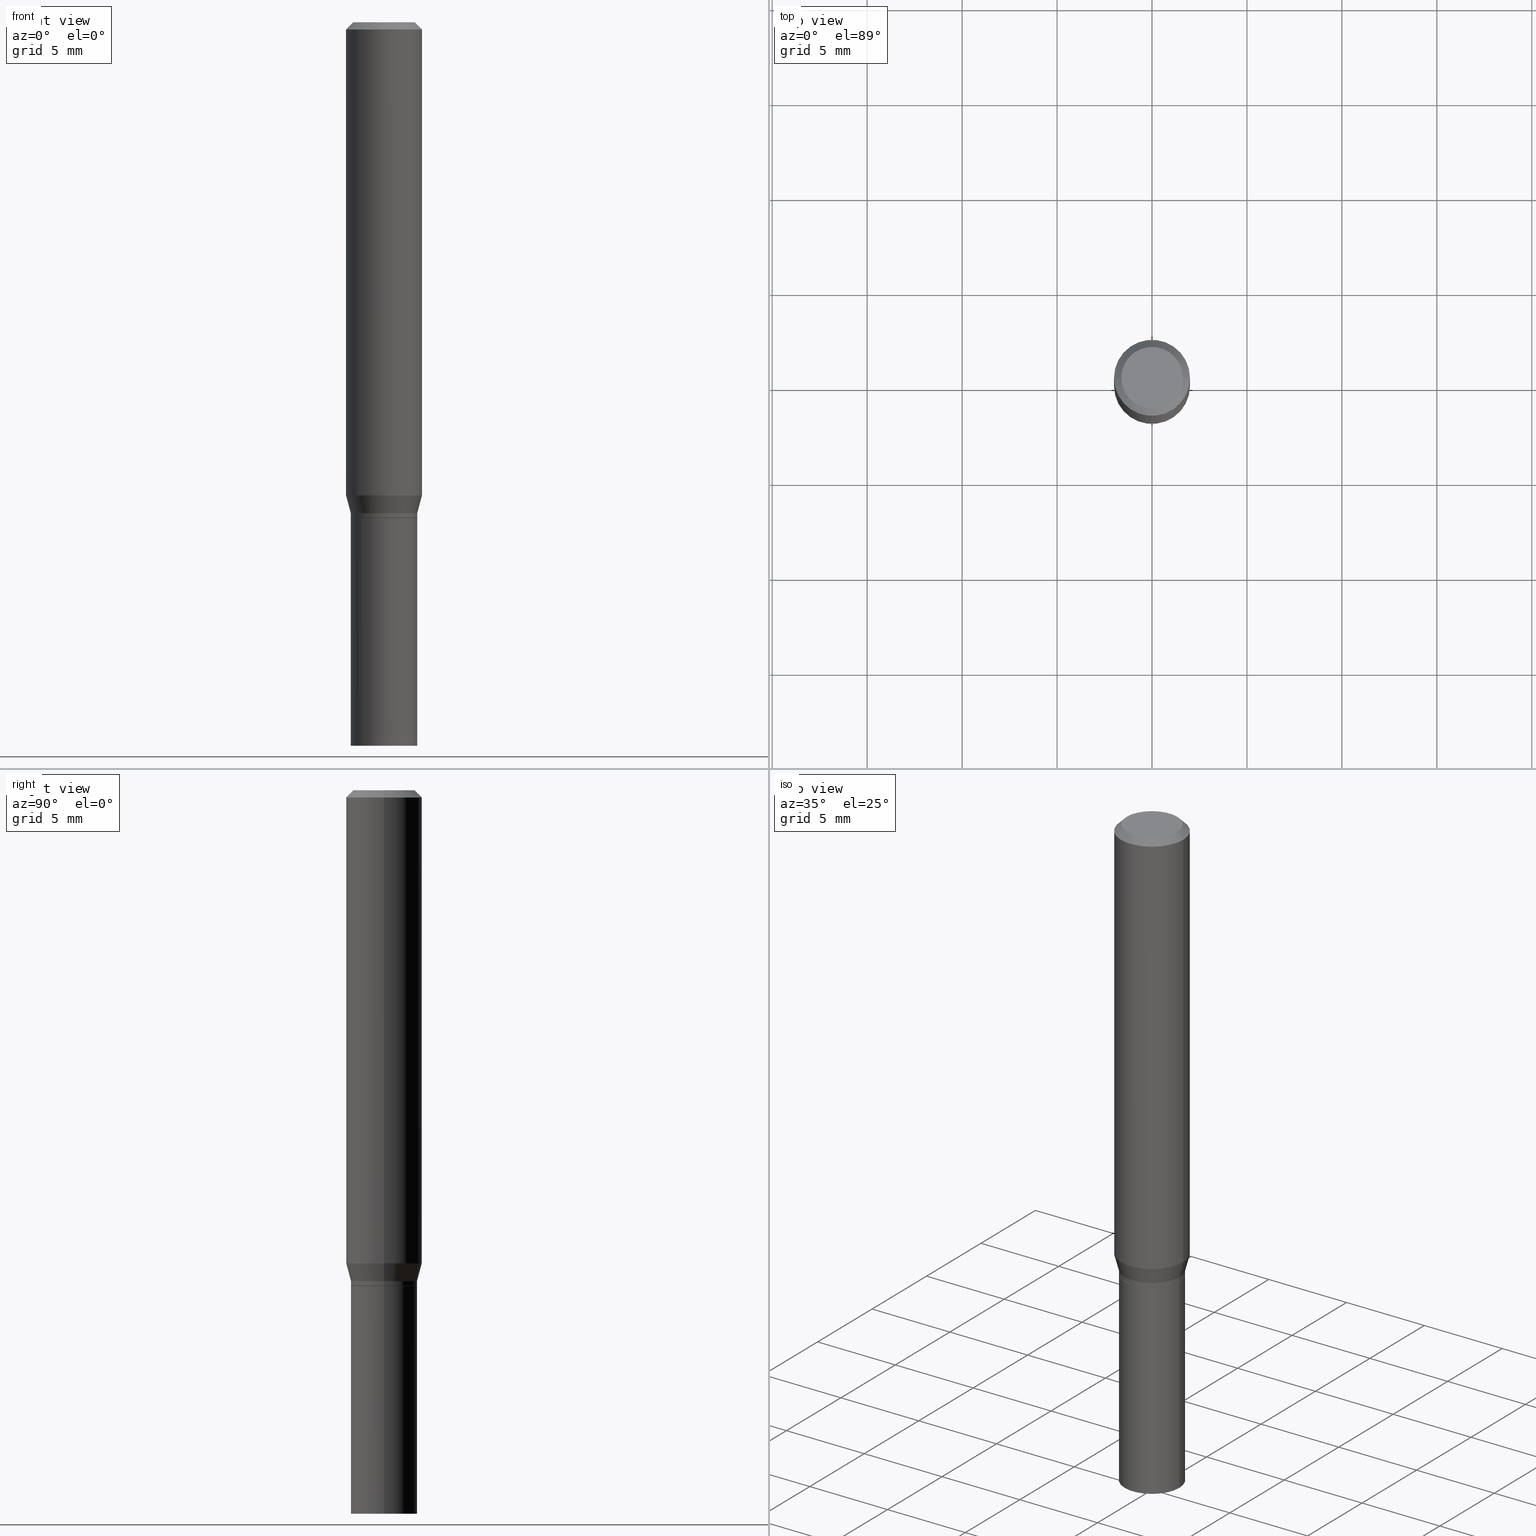
[diagram: canonical four-view strip — front | top / right | iso, engineering-drawing reading convention]
A machine part, canonical four-view strip (front | top / right | iso — engineering-drawing reading convention). The complete STEP part file that produces these views, byte-faithful:
ISO-10303-21;
HEADER;
FILE_DESCRIPTION (( 'STEP AP203' ),
    '1' );
FILE_NAME ('40125.STEP',
    '2024-03-12T19:09:19',
    ( '' ),
    ( '' ),
    'SwSTEP 2.0',
    'SolidWorks 2023',
    '' );
FILE_SCHEMA (( 'CONFIG_CONTROL_DESIGN' ));
ENDSEC;

DATA;
#1 = CONICAL_SURFACE ( 'NONE', #209, 0.07875000000000000056, 0.7853981633974492782 ) ;
#2 = CARTESIAN_POINT ( 'NONE',  ( 0.000000000000000000, 0.000000000000000000, 0.000000000000000000 ) ) ;
#3 = EDGE_LOOP ( 'NONE', ( #211, #59 ) ) ;
#4 = DIRECTION ( 'NONE',  ( 1.000000000000000000, -6.982962677686265922E-15, 0.000000000000000000 ) ) ;
#5 = UNCERTAINTY_MEASURE_WITH_UNIT (LENGTH_MEASURE( 1.000000000000000082E-05 ), #458, 'distance_accuracy_value', 'NONE');
#6 = DIRECTION ( 'NONE',  ( 1.000000000000000000, -6.982962677686265922E-15, 4.876524793569656819E-29 ) ) ;
#7 = CARTESIAN_POINT ( 'NONE',  ( 2.512963745235846851E-29, -3.587846223795217707E-15, -1.027600000000000291 ) ) ;
#8 = VECTOR ( 'NONE', #230, 39.37007874015748143 ) ;
#9 = DIRECTION ( 'NONE',  ( 1.000000000000000000, -6.982962677686265922E-15, 0.000000000000000000 ) ) ;
#10 = FACE_OUTER_BOUND ( 'NONE', #244, .T. ) ;
#11 = ORIENTED_EDGE ( 'NONE', *, *, #125, .T. ) ;
#12 = DIRECTION ( 'NONE',  ( 1.000000000000000000, -6.982962677686265922E-15, 4.876524793569656819E-29 ) ) ;
#13 = EDGE_LOOP ( 'NONE', ( #429, #138 ) ) ;
#14 = DIRECTION ( 'NONE',  ( -2.445468806185136597E-29, 3.491481338843145583E-15, 1.000000000000000000 ) ) ;
#15 = ADVANCED_FACE ( 'NONE', ( #103 ), #69, .F. ) ;
#16 = CIRCLE ( 'NONE', #274, 0.06890000000000007230 ) ;
#17 = APPLICATION_PROTOCOL_DEFINITION ( 'international standard', 'config_control_design', 1994, #146 ) ;
#18 = CARTESIAN_POINT ( 'NONE',  ( 0.06890000000000012781, -4.811261284925847246E-16, 3.359685798523406275E-30 ) ) ;
#19 = EDGE_CURVE ( 'NONE', #247, #65, #16, .T. ) ;
#20 = DIRECTION ( 'NONE',  ( -2.445468806185136877E-29, 3.491481338843145188E-15, 1.000000000000000000 ) ) ;
#21 = APPROVAL_PERSON_ORGANIZATION ( #242, #238, #131 ) ;
#22 = AXIS2_PLACEMENT_3D ( 'NONE', #331, #221, #447 ) ;
#23 = CARTESIAN_POINT ( 'NONE',  ( -0.07875000000000001443, 5.595524044110789989E-16, -3.873661383575739193E-30 ) ) ;
#24 = CARTESIAN_POINT ( 'NONE',  ( 2.512963745235846570E-29, -3.587846223795216918E-15, -1.027600000000000069 ) ) ;
#25 = CC_DESIGN_SECURITY_CLASSIFICATION ( #427, ( #200 ) ) ;
#26 = ORIENTED_EDGE ( 'NONE', *, *, #223, .F. ) ;
#27 = CARTESIAN_POINT ( 'NONE',  ( 0.06840000000000000246, -4.065480870948958439E-15, -1.027600000000000291 ) ) ;
#28 = EDGE_CURVE ( 'NONE', #227, #253, #137, .T. ) ;
#29 = APPROVAL_PERSON_ORGANIZATION ( #358, #56, #314 ) ;
#30 = PERSON_AND_ORGANIZATION_ROLE ( 'classification_officer' ) ;
#31 = DATE_AND_TIME ( #174, #153 ) ;
#32 = PRODUCT_DEFINITION ( 'UNKNOWN', '', #200, #285 ) ;
#33 = ORIENTED_EDGE ( 'NONE', *, *, #328, .T. ) ;
#34 = VECTOR ( 'NONE', #263, 39.37007874015748143 ) ;
#35 = VERTEX_POINT ( 'NONE', #403 ) ;
#36 = CARTESIAN_POINT ( 'NONE',  ( 3.576687321579069994E-29, -5.368277968210015545E-15, -1.500000000000000222 ) ) ;
#37 = AXIS2_PLACEMENT_3D ( 'NONE', #208, #337, #367 ) ;
#38 = CARTESIAN_POINT ( 'NONE',  ( 8.203589851528197750E-46, -1.171255213139091292E-31, -3.354608257843848654E-17 ) ) ;
#39 = DIRECTION ( 'NONE',  ( 0.7071067811865482389, -7.319954787623257623E-15, -0.7071067811865467956 ) ) ;
#40 = DIRECTION ( 'NONE',  ( 1.000000000000000000, -6.982962677686265922E-15, 4.876176775795935793E-29 ) ) ;
#41 = DIRECTION ( 'NONE',  ( 1.000000000000000000, -6.982962677686265922E-15, 4.876176775795935793E-29 ) ) ;
#42 = CARTESIAN_POINT ( 'NONE',  ( -0.06840000000000000246, -3.101834992535309064E-15, -1.027600000000000291 ) ) ;
#43 = CONICAL_SURFACE ( 'NONE', #386, 0.06890000000000007230, 0.2617993877991506846 ) ;
#44 = AXIS2_PLACEMENT_3D ( 'NONE', #277, #204, #288 ) ;
#45 = CARTESIAN_POINT ( 'NONE',  ( 3.668203209277705088E-31, -5.237222008264718399E-17, -0.01499999999999999944 ) ) ;
#46 = ORIENTED_EDGE ( 'NONE', *, *, #413, .T. ) ;
#47 = EDGE_CURVE ( 'NONE', #321, #249, #325, .T. ) ;
#48 = DIRECTION ( 'NONE',  ( -2.438088387897960049E-29, 3.491481338843145188E-15, 1.000000000000000000 ) ) ;
#49 = LINE ( 'NONE', #372, #34 ) ;
#50 = AXIS2_PLACEMENT_3D ( 'NONE', #385, #84, #167 ) ;
#51 = DIRECTION ( 'NONE',  ( 1.000000000000000000, -6.982962677686265922E-15, 0.000000000000000000 ) ) ;
#52 = EDGE_CURVE ( 'NONE', #321, #301, #329, .T. ) ;
#53 = DIRECTION ( 'NONE',  ( 0.7071067811865656694, -2.468850131082446387E-15, 0.7071067811865294761 ) ) ;
#54 = DIRECTION ( 'NONE',  ( 1.000000000000000000, -6.982962677686267499E-15, 4.876176775795936353E-29 ) ) ;
#55 = DIRECTION ( 'NONE',  ( -2.445468806185136597E-29, 3.491481338843145583E-15, 1.000000000000000000 ) ) ;
#56 = APPROVAL ( #90, 'UNSPECIFIED' ) ;
#57 = CARTESIAN_POINT ( 'NONE',  ( 2.488509057173995025E-29, -3.552931410406785269E-15, -1.017600000000000060 ) ) ;
#58 = PERSON_AND_ORGANIZATION_ROLE ( 'design_supplier' ) ;
#59 = ORIENTED_EDGE ( 'NONE', *, *, #62, .F. ) ;
#60 = APPROVAL_PERSON_ORGANIZATION ( #431, #405, #240 ) ;
#61 = PERSON_AND_ORGANIZATION_ROLE ( 'design_owner' ) ;
#62 = EDGE_CURVE ( 'NONE', #35, #336, #234, .T. ) ;
#63 = CALENDAR_DATE ( 2024, 12, 3 ) ;
#64 = PERSON_AND_ORGANIZATION ( #239, #113 ) ;
#65 = VERTEX_POINT ( 'NONE', #123 ) ;
#66 = ORIENTED_EDGE ( 'NONE', *, *, #369, .T. ) ;
#67 = FACE_OUTER_BOUND ( 'NONE', #106, .T. ) ;
#68 = VECTOR ( 'NONE', #180, 39.37007874015748143 ) ;
#69 = PLANE ( 'NONE',  #251 ) ;
#70 = CYLINDRICAL_SURFACE ( 'NONE', #360, 0.07875000000000001443 ) ;
#71 = CYLINDRICAL_SURFACE ( 'NONE', #98, 0.06890000000000000291 ) ;
#72 = CC_DESIGN_PERSON_AND_ORGANIZATION_ASSIGNMENT ( #275, #359, ( #32 ) ) ;
#73 = DIRECTION ( 'NONE',  ( -2.445468806185136597E-29, 3.491481338843145583E-15, 1.000000000000000000 ) ) ;
#74 = PLANE ( 'NONE',  #399 ) ;
#75 = PRODUCT_DEFINITION_SHAPE ( 'NONE', 'NONE',  #32 ) ;
#76 = ORIENTED_EDGE ( 'NONE', *, *, #383, .T. ) ;
#77 = DIRECTION ( 'NONE',  ( 1.000000000000000000, -6.982962677686265922E-15, 0.000000000000000000 ) ) ;
#78 = ADVANCED_FACE ( 'NONE', ( #235 ), #352, .F. ) ;
#79 = CIRCLE ( 'NONE', #461, 0.06890000000000000291 ) ;
#80 = ORIENTED_EDGE ( 'NONE', *, *, #118, .T. ) ;
#81 = CARTESIAN_POINT ( 'NONE',  ( 3.668203209277705088E-31, -5.237222008264718399E-17, -0.01499999999999999944 ) ) ;
#82 = LOCAL_TIME ( 15, 9, 19.00000000000000000, #279 ) ;
#83 = EDGE_CURVE ( 'NONE', #301, #261, #79, .T. ) ;
#84 = DIRECTION ( 'NONE',  ( -2.445468806185136597E-29, 3.491481338843145583E-15, 1.000000000000000000 ) ) ;
#85 = CARTESIAN_POINT ( 'NONE',  ( 2.488509057173995025E-29, -3.552931410406785269E-15, -1.017600000000000060 ) ) ;
#86 = LINE ( 'NONE', #344, #245 ) ;
#87 = FACE_OUTER_BOUND ( 'NONE', #217, .T. ) ;
#88 = CONICAL_SURFACE ( 'NONE', #181, 0.06840000000000000246, 0.7853981633974739252 ) ;
#89 = EDGE_CURVE ( 'NONE', #284, #406, #454, .T. ) ;
#90 = APPROVAL_STATUS ( 'not_yet_approved' ) ;
#91 = VECTOR ( 'NONE', #195, 39.37007874015748143 ) ;
#92 = DIRECTION ( 'NONE',  ( -2.445468806185136877E-29, 3.491481338843145188E-15, 1.000000000000000000 ) ) ;
#93 = DIRECTION ( 'NONE',  ( 0.000000000000000000, 0.000000000000000000, 1.000000000000000000 ) ) ;
#94 = ADVANCED_FACE ( 'NONE', ( #382 ), #377, .T. ) ;
#95 = LOCAL_TIME ( 15, 9, 19.00000000000000000, #165 ) ;
#96 = APPROVAL_DATE_TIME ( #323, #405 ) ;
#97 = EDGE_LOOP ( 'NONE', ( #133, #116, #355, #136 ) ) ;
#98 = AXIS2_PLACEMENT_3D ( 'NONE', #365, #145, #292 ) ;
#99 = PERSON_AND_ORGANIZATION ( #239, #113 ) ;
#100 = ORIENTED_EDGE ( 'NONE', *, *, #83, .F. ) ;
#101 = EDGE_LOOP ( 'NONE', ( #26, #276, #80, #400 ) ) ;
#102 = APPLICATION_CONTEXT ( 'configuration controlled 3d designs of mechanical parts and assemblies' ) ;
#103 = FACE_OUTER_BOUND ( 'NONE', #3, .T. ) ;
#104 = FACE_OUTER_BOUND ( 'NONE', #112, .T. ) ;
#105 = VECTOR ( 'NONE', #53, 39.37007874015748143 ) ;
#106 = EDGE_LOOP ( 'NONE', ( #169, #398, #361, #396 ) ) ;
#107 = AXIS2_PLACEMENT_3D ( 'NONE', #215, #14, #370 ) ;
#108 = FACE_OUTER_BOUND ( 'NONE', #324, .T. ) ;
#109 = CARTESIAN_POINT ( 'NONE',  ( -0.06890000000000000291, -3.922970171091258795E-15, -1.027600000000000069 ) ) ;
#110 = PLANE ( 'NONE',  #22 ) ;
#111 = ADVANCED_FACE ( 'NONE', ( #87 ), #228, .T. ) ;
#112 = EDGE_LOOP ( 'NONE', ( #237, #33, #46, #296 ) ) ;
#113 = ORGANIZATION ( 'UNSPECIFIED', 'UNSPECIFIED', '' ) ;
#114 = CARTESIAN_POINT ( 'NONE',  ( 2.511741010832753769E-29, -3.586100483125795415E-15, -1.027100000000000124 ) ) ;
#115 = AXIS2_PLACEMENT_3D ( 'NONE', #127, #233, #422 ) ;
#116 = ORIENTED_EDGE ( 'NONE', *, *, #206, .T. ) ;
#117 = DIRECTION ( 'NONE',  ( 2.445468806185136597E-29, -3.491481338843145583E-15, -1.000000000000000000 ) ) ;
#118 = EDGE_CURVE ( 'NONE', #247, #436, #164, .T. ) ;
#119 = CARTESIAN_POINT ( 'NONE',  ( 0.07875000000000001443, -3.974490421634703940E-15, -0.9808392995454470187 ) ) ;
#120 = CARTESIAN_POINT ( 'NONE',  ( 0.06890000000000000291, -4.811261284925838371E-16, 3.359685798523399969E-30 ) ) ;
#121 = AXIS2_PLACEMENT_3D ( 'NONE', #460, #346, #272 ) ;
#122 = CARTESIAN_POINT ( 'NONE',  ( 0.06890000000000007230, -4.034057538899369797E-15, -1.017600000000000060 ) ) ;
#123 = CARTESIAN_POINT ( 'NONE',  ( -0.06890000000000007230, -2.964198585911954154E-15, -1.017600000000000060 ) ) ;
#124 = ADVANCED_FACE ( 'NONE', ( #198 ), #163, .T. ) ;
#125 = EDGE_CURVE ( 'NONE', #249, #261, #389, .T. ) ;
#126 = CARTESIAN_POINT ( 'NONE',  ( 0.07875000000000001443, -5.499083108677936415E-16, 3.839989210939299717E-30 ) ) ;
#127 = CARTESIAN_POINT ( 'NONE',  ( 2.512963745235846851E-29, -3.587846223795217707E-15, -1.027600000000000291 ) ) ;
#128 = MECHANICAL_CONTEXT ( 'NONE', #146, 'mechanical' ) ;
#129 = AXIS2_PLACEMENT_3D ( 'NONE', #443, #265, #212 ) ;
#130 = CARTESIAN_POINT ( 'NONE',  ( 2.488509057173995025E-29, -3.552931410406785269E-15, -1.017600000000000060 ) ) ;
#131 = APPROVAL_ROLE ( '' ) ;
#132 = EDGE_CURVE ( 'NONE', #65, #247, #219, .T. ) ;
#133 = ORIENTED_EDGE ( 'NONE', *, *, #89, .F. ) ;
#134 = EDGE_LOOP ( 'NONE', ( #373, #432, #286, #394 ) ) ;
#135 = DATE_TIME_ROLE ( 'creation_date' ) ;
#136 = ORIENTED_EDGE ( 'NONE', *, *, #383, .F. ) ;
#137 = CIRCLE ( 'NONE', #293, 0.06375000000000000111 ) ;
#138 = ORIENTED_EDGE ( 'NONE', *, *, #273, .T. ) ;
#139 = CC_DESIGN_PERSON_AND_ORGANIZATION_ASSIGNMENT ( #99, #463, ( #200 ) ) ;
#140 = ORIENTED_EDGE ( 'NONE', *, *, #453, .T. ) ;
#141 = CARTESIAN_POINT ( 'NONE',  ( 2.512963745235846851E-29, -3.587846223795217707E-15, -1.027600000000000291 ) ) ;
#142 = AXIS2_PLACEMENT_3D ( 'NONE', #308, #381, #456 ) ;
#143 = ORIENTED_EDGE ( 'NONE', *, *, #52, .F. ) ;
#144 = CARTESIAN_POINT ( 'NONE',  ( 0.06890000000000019720, -4.067226611618380731E-15, -1.027100000000000124 ) ) ;
#145 = DIRECTION ( 'NONE',  ( -2.445468806185136597E-29, 3.491481338843145583E-15, 1.000000000000000000 ) ) ;
#146 = APPLICATION_CONTEXT ( 'configuration controlled 3d designs of mechanical parts and assemblies' ) ;
#147 = VECTOR ( 'NONE', #270, 39.37007874015748143 ) ;
#148 = ADVANCED_FACE ( 'NONE', ( #197 ), #311, .T. ) ;
#149 = EDGE_LOOP ( 'NONE', ( #434, #426, #183, #76 ) ) ;
#150 = CARTESIAN_POINT ( 'NONE',  ( -0.07875000000000000056, -1.178924761013699443E-15, -0.01499999999999999944 ) ) ;
#151 = ORIENTED_EDGE ( 'NONE', *, *, #89, .T. ) ;
#152 = DIRECTION ( 'NONE',  ( 1.000000000000000000, -6.982962677686265922E-15, 0.000000000000000000 ) ) ;
#153 = LOCAL_TIME ( 15, 9, 19.00000000000000000, #278 ) ;
#154 = ORIENTED_EDGE ( 'NONE', *, *, #132, .F. ) ;
#155 = CARTESIAN_POINT ( 'NONE',  ( 3.668203209277704895E-29, -5.237222008264718177E-15, -1.500000000000000222 ) ) ;
#156 = AXIS2_PLACEMENT_3D ( 'NONE', #7, #362, #152 ) ;
#157 = DIRECTION ( 'NONE',  ( -2.445468806185136877E-29, 3.491481338843145188E-15, 1.000000000000000000 ) ) ;
#158 = DIRECTION ( 'NONE',  ( -2.445468806185136597E-29, 3.491481338843145583E-15, 1.000000000000000000 ) ) ;
#159 = CC_DESIGN_APPROVAL ( #405, ( #200 ) ) ;
#160 = DIRECTION ( 'NONE',  ( -2.445468806185136597E-29, 3.491481338843145583E-15, 1.000000000000000000 ) ) ;
#161 = AXIS2_PLACEMENT_3D ( 'NONE', #155, #339, #449 ) ;
#162 = ADVANCED_FACE ( 'NONE', ( #304 ), #335, .T. ) ;
#163 = CYLINDRICAL_SURFACE ( 'NONE', #50, 0.07875000000000001443 ) ;
#164 = LINE ( 'NONE', #122, #186 ) ;
#165 = COORDINATED_UNIVERSAL_TIME_OFFSET ( 5, 0, .BEHIND. ) ;
#166 = ORIENTED_EDGE ( 'NONE', *, *, #62, .T. ) ;
#167 = DIRECTION ( 'NONE',  ( 1.000000000000000000, -6.982962677686267499E-15, 4.876176775795935232E-29 ) ) ;
#168 = COORDINATED_UNIVERSAL_TIME_OFFSET ( 5, 0, .BEHIND. ) ;
#169 = ORIENTED_EDGE ( 'NONE', *, *, #300, .T. ) ;
#170 = VECTOR ( 'NONE', #39, 39.37007874015748143 ) ;
#171 = APPROVAL_DATE_TIME ( #31, #238 ) ;
#172 = DATE_AND_TIME ( #236, #232 ) ;
#173 = ORIENTED_EDGE ( 'NONE', *, *, #83, .T. ) ;
#174 = CALENDAR_DATE ( 2024, 12, 3 ) ;
#175 = EDGE_CURVE ( 'NONE', #336, #351, #452, .T. ) ;
#176 = AXIS2_PLACEMENT_3D ( 'NONE', #334, #298, #12 ) ;
#177 = DIRECTION ( 'NONE',  ( 1.000000000000000000, -6.982962677686265922E-15, 0.000000000000000000 ) ) ;
#178 = CARTESIAN_POINT ( 'NONE',  ( 3.668203209277705088E-31, -5.237222008264718399E-17, -0.01499999999999999944 ) ) ;
#179 = DIRECTION ( 'NONE',  ( -2.445468806185136597E-29, 3.491481338843145583E-15, 1.000000000000000000 ) ) ;
#180 = DIRECTION ( 'NONE',  ( -0.7071067811865482389, 2.468850131082264555E-15, -0.7071067811865467956 ) ) ;
#181 = AXIS2_PLACEMENT_3D ( 'NONE', #141, #445, #287 ) ;
#182 = EDGE_CURVE ( 'NONE', #351, #247, #225, .T. ) ;
#183 = ORIENTED_EDGE ( 'NONE', *, *, #356, .T. ) ;
#184 = DIRECTION ( 'NONE',  ( -2.445468806185136597E-29, 3.491481338843145583E-15, 1.000000000000000000 ) ) ;
#185 = DIRECTION ( 'NONE',  ( -0.7071067811865656694, 7.493145998870420424E-15, 0.7071067811865294761 ) ) ;
#186 = VECTOR ( 'NONE', #415, 39.37007874015748143 ) ;
#187 = EDGE_LOOP ( 'NONE', ( #441, #205, #448, #424 ) ) ;
#188 = CARTESIAN_POINT ( 'NONE',  ( 0.06840000000000000246, -4.065480870948958439E-15, -1.027600000000000291 ) ) ;
#189 = ORIENTED_EDGE ( 'NONE', *, *, #182, .F. ) ;
#190 = DIRECTION ( 'NONE',  ( -2.445468806185136597E-29, 3.491481338843145583E-15, 1.000000000000000000 ) ) ;
#191 = CARTESIAN_POINT ( 'NONE',  ( 0.06890000000000007230, -4.034057538899369797E-15, -1.017600000000000060 ) ) ;
#192 = CIRCLE ( 'NONE', #440, 0.07875000000000000056 ) ;
#193 = DIRECTION ( 'NONE',  ( 1.000000000000000000, -6.982962677686267499E-15, 4.876176775795936353E-29 ) ) ;
#194 = EDGE_CURVE ( 'NONE', #294, #65, #86, .T. ) ;
#195 = DIRECTION ( 'NONE',  ( -2.445468806185136877E-29, 3.491481338843145188E-15, 1.000000000000000000 ) ) ;
#196 = ADVANCED_FACE ( 'NONE', ( #315 ), #43, .T. ) ;
#197 = FACE_OUTER_BOUND ( 'NONE', #241, .T. ) ;
#198 = FACE_OUTER_BOUND ( 'NONE', #97, .T. ) ;
#199 = DIRECTION ( 'NONE',  ( 1.000000000000000000, -6.982962677686265922E-15, 0.000000000000000000 ) ) ;
#200 = PRODUCT_DEFINITION_FORMATION_WITH_SPECIFIED_SOURCE ( 'ANY', '', #322, .NOT_KNOWN. ) ;
#201 = CALENDAR_DATE ( 2024, 12, 3 ) ;
#202 = ORIENTED_EDGE ( 'NONE', *, *, #442, .F. ) ;
#203 = AXIS2_PLACEMENT_3D ( 'NONE', #290, #332, #9 ) ;
#204 = DIRECTION ( 'NONE',  ( -2.445468806185136597E-29, 3.491481338843145583E-15, 1.000000000000000000 ) ) ;
#205 = ORIENTED_EDGE ( 'NONE', *, *, #281, .T. ) ;
#206 = EDGE_CURVE ( 'NONE', #284, #436, #378, .T. ) ;
#207 = ORIENTED_EDGE ( 'NONE', *, *, #194, .F. ) ;
#208 = CARTESIAN_POINT ( 'NONE',  ( 2.512963745235846851E-29, -3.587846223795217707E-15, -1.027600000000000291 ) ) ;
#209 = AXIS2_PLACEMENT_3D ( 'NONE', #81, #117, #327 ) ;
#210 = CIRCLE ( 'NONE', #107, 0.06890000000000000291 ) ;
#211 = ORIENTED_EDGE ( 'NONE', *, *, #300, .F. ) ;
#212 = DIRECTION ( 'NONE',  ( 1.000000000000000000, -6.982962677686267499E-15, 0.000000000000000000 ) ) ;
#213 = CARTESIAN_POINT ( 'NONE',  ( 0.06375000000000000111, -5.149965923825452265E-16, -3.354608257843512772E-17 ) ) ;
#214 = ORIENTED_EDGE ( 'NONE', *, *, #388, .T. ) ;
#215 = CARTESIAN_POINT ( 'NONE',  ( 2.512963745235846570E-29, -3.587846223795216918E-15, -1.027600000000000069 ) ) ;
#216 = LOCAL_TIME ( 15, 9, 19.00000000000000000, #168 ) ;
#217 = EDGE_LOOP ( 'NONE', ( #207, #66, #464, #154 ) ) ;
#218 = DIRECTION ( 'NONE',  ( 1.000000000000000000, -6.982962677686267499E-15, 4.876176775795935232E-29 ) ) ;
#219 = CIRCLE ( 'NONE', #316, 0.06890000000000007230 ) ;
#220 = ORIENTED_EDGE ( 'NONE', *, *, #413, .F. ) ;
#221 = DIRECTION ( 'NONE',  ( 2.438088387897960049E-29, -3.491481338843145188E-15, -1.000000000000000000 ) ) ;
#222 = CONICAL_SURFACE ( 'NONE', #37, 0.06840000000000000246, 0.7853981633974739252 ) ;
#223 = EDGE_CURVE ( 'NONE', #65, #284, #49, .T. ) ;
#224 =( NAMED_UNIT ( * ) PLANE_ANGLE_UNIT ( ) SI_UNIT ( $, .RADIAN. ) );
#225 = LINE ( 'NONE', #18, #91 ) ;
#226 = AXIS2_PLACEMENT_3D ( 'NONE', #349, #459, #268 ) ;
#227 = VERTEX_POINT ( 'NONE', #439 ) ;
#228 = CYLINDRICAL_SURFACE ( 'NONE', #371, 0.06890000000000012781 ) ;
#229 = CC_DESIGN_PERSON_AND_ORGANIZATION_ASSIGNMENT ( #354, #30, ( #427 ) ) ;
#230 = DIRECTION ( 'NONE',  ( -2.445468806185136877E-29, 3.491481338843145188E-15, 1.000000000000000000 ) ) ;
#231 = DIRECTION ( 'NONE',  ( 1.000000000000000000, -6.982962677686267499E-15, 0.000000000000000000 ) ) ;
#232 = LOCAL_TIME ( 15, 9, 19.00000000000000000, #425 ) ;
#233 = DIRECTION ( 'NONE',  ( -2.445468806185136597E-29, 3.491481338843145583E-15, 1.000000000000000000 ) ) ;
#234 = CIRCLE ( 'NONE', #115, 0.06840000000000000246 ) ;
#235 = FACE_OUTER_BOUND ( 'NONE', #318, .T. ) ;
#236 = CALENDAR_DATE ( 2024, 12, 3 ) ;
#237 = ORIENTED_EDGE ( 'NONE', *, *, #273, .F. ) ;
#238 = APPROVAL ( #319, 'UNSPECIFIED' ) ;
#239 = PERSON ( 'UNSPECIFIED', 'UNSPECIFIED', 'UNSPECIFIED', ('UNSPECIFIED'), ('UNSPECIFIED'), ('UNSPECIFIED') ) ;
#240 = APPROVAL_ROLE ( '' ) ;
#241 = EDGE_LOOP ( 'NONE', ( #390, #11, #100, #143 ) ) ;
#242 = PERSON_AND_ORGANIZATION ( #239, #113 ) ;
#243 = VECTOR ( 'NONE', #92, 39.37007874015748143 ) ;
#244 = EDGE_LOOP ( 'NONE', ( #258, #166, #280, #444 ) ) ;
#245 = VECTOR ( 'NONE', #20, 39.37007874015748143 ) ;
#246 = PERSON_AND_ORGANIZATION ( #239, #113 ) ;
#247 = VERTEX_POINT ( 'NONE', #191 ) ;
#248 = ORIENTED_EDGE ( 'NONE', *, *, #282, .T. ) ;
#249 = VERTEX_POINT ( 'NONE', #402 ) ;
#250 = DIRECTION ( 'NONE',  ( -2.445468806185136597E-29, 3.491481338843145583E-15, 1.000000000000000000 ) ) ;
#251 = AXIS2_PLACEMENT_3D ( 'NONE', #330, #264, #40 ) ;
#252 = MANIFOLD_SOLID_BREP ( 'Body-Move/Copy2[1]', #310 ) ;
#253 = VERTEX_POINT ( 'NONE', #213 ) ;
#254 = CARTESIAN_POINT ( 'NONE',  ( 0.000000000000000000, 0.000000000000000000, 0.000000000000000000 ) ) ;
#255 = LINE ( 'NONE', #42, #347 ) ;
#256 = ADVANCED_FACE ( 'NONE', ( #340 ), #71, .T. ) ;
#257 = AXIS2_PLACEMENT_3D ( 'NONE', #178, #184, #77 ) ;
#258 = ORIENTED_EDGE ( 'NONE', *, *, #267, .F. ) ;
#259 = CARTESIAN_POINT ( 'NONE',  ( -0.06890000000000019720, -3.096536538187084690E-15, -1.027100000000000124 ) ) ;
#260 = CONICAL_SURFACE ( 'NONE', #142, 0.07875000000000000056, 0.7853981633974492782 ) ;
#261 = VERTEX_POINT ( 'NONE', #109 ) ;
#262 = DIRECTION ( 'NONE',  ( -2.445468806185136597E-29, 3.491481338843145583E-15, 1.000000000000000000 ) ) ;
#263 = DIRECTION ( 'NONE',  ( -0.2588190451025219607, 5.211531920934553408E-15, 0.9659258262890679791 ) ) ;
#264 = DIRECTION ( 'NONE',  ( -2.438088387897960049E-29, 3.491481338843145188E-15, 1.000000000000000000 ) ) ;
#265 = DIRECTION ( 'NONE',  ( -2.445468806185136597E-29, 3.491481338843145583E-15, 1.000000000000000000 ) ) ;
#266 = CARTESIAN_POINT ( 'NONE',  ( 2.398611910918870150E-29, -3.424582110766910594E-15, -0.9808392995454470187 ) ) ;
#267 = EDGE_CURVE ( 'NONE', #35, #294, #255, .T. ) ;
#268 = DIRECTION ( 'NONE',  ( 1.000000000000000000, -6.982962677686267499E-15, 4.876176775795935793E-29 ) ) ;
#269 = DIRECTION ( 'NONE',  ( -2.445468806185136597E-29, 3.491481338843145583E-15, 1.000000000000000000 ) ) ;
#270 = DIRECTION ( 'NONE',  ( -2.445468806185136877E-29, 3.491481338843145188E-15, 1.000000000000000000 ) ) ;
#271 = DIMENSIONAL_EXPONENTS ( 1.000000000000000000, 0.000000000000000000, 0.000000000000000000, 0.000000000000000000, 0.000000000000000000, 0.000000000000000000, 0.000000000000000000 ) ;
#272 = DIRECTION ( 'NONE',  ( -1.000000000000000000, 6.982962677686265922E-15, -4.876176775795935793E-29 ) ) ;
#273 = EDGE_CURVE ( 'NONE', #253, #227, #307, .T. ) ;
#274 = AXIS2_PLACEMENT_3D ( 'NONE', #412, #73, #177 ) ;
#275 = PERSON_AND_ORGANIZATION ( #239, #113 ) ;
#276 = ORIENTED_EDGE ( 'NONE', *, *, #132, .T. ) ;
#277 = CARTESIAN_POINT ( 'NONE',  ( 2.398611910918870150E-29, -3.424582110766910594E-15, -0.9808392995454470187 ) ) ;
#278 = COORDINATED_UNIVERSAL_TIME_OFFSET ( 5, 0, .BEHIND. ) ;
#279 = COORDINATED_UNIVERSAL_TIME_OFFSET ( 5, 0, .BEHIND. ) ;
#280 = ORIENTED_EDGE ( 'NONE', *, *, #175, .T. ) ;
#281 = EDGE_CURVE ( 'NONE', #249, #321, #423, .T. ) ;
#282 = EDGE_CURVE ( 'NONE', #351, #294, #450, .T. ) ;
#283 = DIRECTION ( 'NONE',  ( 1.000000000000000000, 0.000000000000000000, 0.000000000000000000 ) ) ;
#284 = VERTEX_POINT ( 'NONE', #374 ) ;
#285 = DESIGN_CONTEXT ( 'detailed design', #102, 'design' ) ;
#286 = ORIENTED_EDGE ( 'NONE', *, *, #453, .F. ) ;
#287 = DIRECTION ( 'NONE',  ( 1.000000000000000000, -6.982962677686265922E-15, 0.000000000000000000 ) ) ;
#288 = DIRECTION ( 'NONE',  ( 1.000000000000000000, -6.982962677686267499E-15, 0.000000000000000000 ) ) ;
#289 = ADVANCED_FACE ( 'NONE', ( #364 ), #110, .F. ) ;
#290 = CARTESIAN_POINT ( 'NONE',  ( 3.668203209277704895E-29, -5.237222008264718177E-15, -1.500000000000000222 ) ) ;
#291 = CARTESIAN_POINT ( 'NONE',  ( -0.07875000000000000056, 4.975360907851462665E-16, -0.01499999999999999944 ) ) ;
#292 = DIRECTION ( 'NONE',  ( 1.000000000000000000, -6.982962677686267499E-15, 4.876176775795935793E-29 ) ) ;
#293 = AXIS2_PLACEMENT_3D ( 'NONE', #38, #179, #6 ) ;
#294 = VERTEX_POINT ( 'NONE', #259 ) ;
#295 = CARTESIAN_POINT ( 'NONE',  ( 0.06890000000000000291, -4.068972352287800657E-15, -1.027600000000000069 ) ) ;
#296 = ORIENTED_EDGE ( 'NONE', *, *, #356, .F. ) ;
#297 = CARTESIAN_POINT ( 'NONE',  ( 0.07875000000000000056, -5.926364374071552647E-16, -0.01499999999999999944 ) ) ;
#298 = DIRECTION ( 'NONE',  ( -2.445468806185136597E-29, 3.491481338843145583E-15, 1.000000000000000000 ) ) ;
#299 = ADVANCED_FACE ( 'NONE', ( #108 ), #70, .T. ) ;
#300 = EDGE_CURVE ( 'NONE', #336, #35, #410, .T. ) ;
#301 = VERTEX_POINT ( 'NONE', #295 ) ;
#302 = DIRECTION ( 'NONE',  ( 1.000000000000000000, -6.982962677686267499E-15, 0.000000000000000000 ) ) ;
#303 = CIRCLE ( 'NONE', #257, 0.07875000000000000056 ) ;
#304 = FACE_OUTER_BOUND ( 'NONE', #134, .T. ) ;
#305 = CIRCLE ( 'NONE', #376, 0.07875000000000001443 ) ;
#306 = DIRECTION ( 'NONE',  ( -2.445468806185136597E-29, 3.491481338843145583E-15, 1.000000000000000000 ) ) ;
#307 = CIRCLE ( 'NONE', #176, 0.06375000000000000111 ) ;
#308 = CARTESIAN_POINT ( 'NONE',  ( 3.668203209277705088E-31, -5.237222008264718399E-17, -0.01499999999999999944 ) ) ;
#309 = CARTESIAN_POINT ( 'NONE',  ( -0.06890000000000000291, 4.895639449387090487E-16, -3.389146277185630017E-30 ) ) ;
#310 = CLOSED_SHELL ( 'NONE', ( #148, #379, #256, #78 ) ) ;
#311 = CYLINDRICAL_SURFACE ( 'NONE', #226, 0.06890000000000000291 ) ;
#312 = ADVANCED_BREP_SHAPE_REPRESENTATION ( '40125', ( #252, #411, #368 ), #437 ) ;
#313 = CC_DESIGN_DATE_AND_TIME_ASSIGNMENT ( #172, #135, ( #32 ) ) ;
#314 = APPROVAL_ROLE ( '' ) ;
#315 = FACE_OUTER_BOUND ( 'NONE', #101, .T. ) ;
#316 = AXIS2_PLACEMENT_3D ( 'NONE', #85, #306, #457 ) ;
#317 = APPROVAL_STATUS ( 'not_yet_approved' ) ;
#318 = EDGE_LOOP ( 'NONE', ( #173, #214 ) ) ;
#319 = APPROVAL_STATUS ( 'not_yet_approved' ) ;
#320 = CC_DESIGN_PERSON_AND_ORGANIZATION_ASSIGNMENT ( #246, #58, ( #200 ) ) ;
#321 = VERTEX_POINT ( 'NONE', #404 ) ;
#322 = PRODUCT ( '40125', '40125', '', ( #128 ) ) ;
#323 = DATE_AND_TIME ( #201, #95 ) ;
#324 = EDGE_LOOP ( 'NONE', ( #140, #151, #220, #202 ) ) ;
#325 = CIRCLE ( 'NONE', #203, 0.06890000000000000291 ) ;
#326 = ORIENTED_EDGE ( 'NONE', *, *, #194, .T. ) ;
#327 = DIRECTION ( 'NONE',  ( -1.000000000000000000, 6.982962677686265922E-15, 0.000000000000000000 ) ) ;
#328 = EDGE_CURVE ( 'NONE', #253, #363, #407, .T. ) ;
#329 = LINE ( 'NONE', #120, #147 ) ;
#330 = CARTESIAN_POINT ( 'NONE',  ( 2.512963745235846851E-29, -3.587846223795217707E-15, -1.027600000000000291 ) ) ;
#331 = CARTESIAN_POINT ( 'NONE',  ( 4.451638707024994831E-16, 0.06375000000000000111, -2.393549766404698045E-16 ) ) ;
#332 = DIRECTION ( 'NONE',  ( -2.445468806185136597E-29, 3.491481338843145583E-15, 1.000000000000000000 ) ) ;
#333 = FACE_OUTER_BOUND ( 'NONE', #466, .T. ) ;
#334 = CARTESIAN_POINT ( 'NONE',  ( 8.203589851528197750E-46, -1.171255213139091292E-31, -3.354608257843848654E-17 ) ) ;
#335 = CONICAL_SURFACE ( 'NONE', #455, 0.06890000000000007230, 0.2617993877991506846 ) ;
#336 = VERTEX_POINT ( 'NONE', #188 ) ;
#337 = DIRECTION ( 'NONE',  ( -2.445468806185136597E-29, 3.491481338843145583E-15, 1.000000000000000000 ) ) ;
#338 = ORIENTED_EDGE ( 'NONE', *, *, #19, .F. ) ;
#339 = DIRECTION ( 'NONE',  ( -2.445468806185136597E-29, 3.491481338843145583E-15, 1.000000000000000000 ) ) ;
#340 = FACE_OUTER_BOUND ( 'NONE', #187, .T. ) ;
#341 = CIRCLE ( 'NONE', #129, 0.06890000000000019720 ) ;
#342 = LINE ( 'NONE', #126, #420 ) ;
#343 = CARTESIAN_POINT ( 'NONE',  ( 0.000000000000000000, 0.000000000000000000, 0.000000000000000000 ) ) ;
#344 = CARTESIAN_POINT ( 'NONE',  ( -0.06890000000000012781, 4.895639449387099362E-16, -3.389146277185637023E-30 ) ) ;
#345 = LENGTH_MEASURE_WITH_UNIT ( LENGTH_MEASURE( 0.02539999999999999897 ), #384 );
#346 = DIRECTION ( 'NONE',  ( 2.438088387897960049E-29, -3.491481338843145188E-15, -1.000000000000000000 ) ) ;
#347 = VECTOR ( 'NONE', #185, 39.37007874015748143 ) ;
#348 = CC_DESIGN_PERSON_AND_ORGANIZATION_ASSIGNMENT ( #64, #61, ( #322 ) ) ;
#349 = CARTESIAN_POINT ( 'NONE',  ( 0.000000000000000000, 0.000000000000000000, 0.000000000000000000 ) ) ;
#350 = ADVANCED_FACE ( 'NONE', ( #104 ), #1, .T. ) ;
#351 = VERTEX_POINT ( 'NONE', #144 ) ;
#352 = PLANE ( 'NONE',  #121 ) ;
#353 = CC_DESIGN_APPROVAL ( #56, ( #32 ) ) ;
#354 = PERSON_AND_ORGANIZATION ( #239, #113 ) ;
#355 = ORIENTED_EDGE ( 'NONE', *, *, #442, .T. ) ;
#356 = EDGE_CURVE ( 'NONE', #227, #406, #401, .T. ) ;
#357 = DATE_TIME_ROLE ( 'classification_date' ) ;
#358 = PERSON_AND_ORGANIZATION ( #239, #113 ) ;
#359 = PERSON_AND_ORGANIZATION_ROLE ( 'creator' ) ;
#360 = AXIS2_PLACEMENT_3D ( 'NONE', #254, #262, #218 ) ;
#361 = ORIENTED_EDGE ( 'NONE', *, *, #282, .F. ) ;
#362 = DIRECTION ( 'NONE',  ( -2.445468806185136597E-29, 3.491481338843145583E-15, 1.000000000000000000 ) ) ;
#363 = VERTEX_POINT ( 'NONE', #409 ) ;
#364 = FACE_OUTER_BOUND ( 'NONE', #13, .T. ) ;
#365 = CARTESIAN_POINT ( 'NONE',  ( 0.000000000000000000, 0.000000000000000000, 0.000000000000000000 ) ) ;
#366 = ORIENTED_EDGE ( 'NONE', *, *, #47, .F. ) ;
#367 = DIRECTION ( 'NONE',  ( 1.000000000000000000, -6.982962677686265922E-15, 0.000000000000000000 ) ) ;
#368 = AXIS2_PLACEMENT_3D ( 'NONE', #2, #93, #283 ) ;
#369 = EDGE_CURVE ( 'NONE', #294, #351, #341, .T. ) ;
#370 = DIRECTION ( 'NONE',  ( 1.000000000000000000, -6.982962677686265922E-15, 0.000000000000000000 ) ) ;
#371 = AXIS2_PLACEMENT_3D ( 'NONE', #343, #269, #193 ) ;
#372 = CARTESIAN_POINT ( 'NONE',  ( -0.06890000000000007230, -3.063367465468076122E-15, -1.017600000000000060 ) ) ;
#373 = ORIENTED_EDGE ( 'NONE', *, *, #19, .T. ) ;
#374 = CARTESIAN_POINT ( 'NONE',  ( -0.07875000000000001443, -2.865029706355831792E-15, -0.9808392995454470187 ) ) ;
#375 =( NAMED_UNIT ( * ) SI_UNIT ( $, .STERADIAN. ) SOLID_ANGLE_UNIT ( ) );
#376 = AXIS2_PLACEMENT_3D ( 'NONE', #266, #414, #231 ) ;
#377 = CYLINDRICAL_SURFACE ( 'NONE', #392, 0.06890000000000012781 ) ;
#378 = CIRCLE ( 'NONE', #44, 0.07875000000000001443 ) ;
#379 = ADVANCED_FACE ( 'NONE', ( #333 ), #74, .F. ) ;
#380 = DIRECTION ( 'NONE',  ( -2.445468806185136597E-29, 3.491481338843145583E-15, 1.000000000000000000 ) ) ;
#381 = DIRECTION ( 'NONE',  ( 2.445468806185136597E-29, -3.491481338843145583E-15, -1.000000000000000000 ) ) ;
#382 = FACE_OUTER_BOUND ( 'NONE', #408, .T. ) ;
#383 = EDGE_CURVE ( 'NONE', #406, #363, #192, .T. ) ;
#384 =( LENGTH_UNIT ( ) NAMED_UNIT ( * ) SI_UNIT ( $, .METRE. ) );
#385 = CARTESIAN_POINT ( 'NONE',  ( 0.000000000000000000, 0.000000000000000000, 0.000000000000000000 ) ) ;
#386 = AXIS2_PLACEMENT_3D ( 'NONE', #130, #160, #417 ) ;
#387 = DATE_AND_TIME ( #428, #82 ) ;
#388 = EDGE_CURVE ( 'NONE', #261, #301, #210, .T. ) ;
#389 = LINE ( 'NONE', #309, #8 ) ;
#390 = ORIENTED_EDGE ( 'NONE', *, *, #47, .T. ) ;
#391 = SECURITY_CLASSIFICATION_LEVEL ( 'unclassified' ) ;
#392 = AXIS2_PLACEMENT_3D ( 'NONE', #419, #158, #54 ) ;
#393 = APPROVAL_DATE_TIME ( #387, #56 ) ;
#394 = ORIENTED_EDGE ( 'NONE', *, *, #118, .F. ) ;
#395 = DATE_AND_TIME ( #63, #216 ) ;
#396 = ORIENTED_EDGE ( 'NONE', *, *, #175, .F. ) ;
#397 = ADVANCED_FACE ( 'NONE', ( #67 ), #222, .T. ) ;
#398 = ORIENTED_EDGE ( 'NONE', *, *, #267, .T. ) ;
#399 = AXIS2_PLACEMENT_3D ( 'NONE', #36, #48, #41 ) ;
#400 = ORIENTED_EDGE ( 'NONE', *, *, #206, .F. ) ;
#401 = LINE ( 'NONE', #291, #68 ) ;
#402 = CARTESIAN_POINT ( 'NONE',  ( -0.06890000000000000291, -3.922970171091258795E-15, -1.500000000000000222 ) ) ;
#403 = CARTESIAN_POINT ( 'NONE',  ( -0.06840000000000000246, -3.099185765361196680E-15, -1.027600000000000291 ) ) ;
#404 = CARTESIAN_POINT ( 'NONE',  ( 0.06890000000000000291, -5.718348136757302704E-15, -1.500000000000000222 ) ) ;
#405 = APPROVAL ( #317, 'UNSPECIFIED' ) ;
#406 = VERTEX_POINT ( 'NONE', #150 ) ;
#407 = LINE ( 'NONE', #297, #170 ) ;
#408 = EDGE_LOOP ( 'NONE', ( #248, #326, #338, #189 ) ) ;
#409 = CARTESIAN_POINT ( 'NONE',  ( 0.07875000000000000056, -6.022805309504406221E-16, -0.01499999999999999944 ) ) ;
#410 = CIRCLE ( 'NONE', #156, 0.06840000000000000246 ) ;
#411 = MANIFOLD_SOLID_BREP ( 'Body-Move/Copy2[2]', #416 ) ;
#412 = CARTESIAN_POINT ( 'NONE',  ( 2.488509057173995025E-29, -3.552931410406785269E-15, -1.017600000000000060 ) ) ;
#413 = EDGE_CURVE ( 'NONE', #363, #406, #303, .T. ) ;
#414 = DIRECTION ( 'NONE',  ( -2.445468806185136597E-29, 3.491481338843145583E-15, 1.000000000000000000 ) ) ;
#415 = DIRECTION ( 'NONE',  ( 0.2588190451025219607, 1.565188264969617432E-15, 0.9659258262890679791 ) ) ;
#416 = CLOSED_SHELL ( 'NONE', ( #94, #397, #350, #299, #162, #196, #124, #433, #289, #15, #418, #111 ) ) ;
#417 = DIRECTION ( 'NONE',  ( 1.000000000000000000, -6.982962677686265922E-15, 0.000000000000000000 ) ) ;
#418 = ADVANCED_FACE ( 'NONE', ( #10 ), #88, .T. ) ;
#419 = CARTESIAN_POINT ( 'NONE',  ( 0.000000000000000000, 0.000000000000000000, 0.000000000000000000 ) ) ;
#420 = VECTOR ( 'NONE', #157, 39.37007874015748143 ) ;
#421 = APPLICATION_PROTOCOL_DEFINITION ( 'international standard', 'config_control_design', 1994, #102 ) ;
#422 = DIRECTION ( 'NONE',  ( 1.000000000000000000, -6.982962677686265922E-15, 0.000000000000000000 ) ) ;
#423 = CIRCLE ( 'NONE', #161, 0.06890000000000000291 ) ;
#424 = ORIENTED_EDGE ( 'NONE', *, *, #388, .F. ) ;
#425 = COORDINATED_UNIVERSAL_TIME_OFFSET ( 5, 0, .BEHIND. ) ;
#426 = ORIENTED_EDGE ( 'NONE', *, *, #28, .F. ) ;
#427 = SECURITY_CLASSIFICATION ( '', '', #391 ) ;
#428 = CALENDAR_DATE ( 2024, 12, 3 ) ;
#429 = ORIENTED_EDGE ( 'NONE', *, *, #28, .T. ) ;
#430 = AXIS2_PLACEMENT_3D ( 'NONE', #114, #250, #302 ) ;
#431 = PERSON_AND_ORGANIZATION ( #239, #113 ) ;
#432 = ORIENTED_EDGE ( 'NONE', *, *, #223, .T. ) ;
#433 = ADVANCED_FACE ( 'NONE', ( #438 ), #260, .T. ) ;
#434 = ORIENTED_EDGE ( 'NONE', *, *, #328, .F. ) ;
#435 = CC_DESIGN_APPROVAL ( #238, ( #427 ) ) ;
#436 = VERTEX_POINT ( 'NONE', #119 ) ;
#437 =( GEOMETRIC_REPRESENTATION_CONTEXT ( 3 ) GLOBAL_UNCERTAINTY_ASSIGNED_CONTEXT ( ( #5 ) ) GLOBAL_UNIT_ASSIGNED_CONTEXT ( ( #458, #224, #375 ) ) REPRESENTATION_CONTEXT ( 'NONE', 'WORKASPACE' ) );
#438 = FACE_OUTER_BOUND ( 'NONE', #149, .T. ) ;
#439 = CARTESIAN_POINT ( 'NONE',  ( -0.06375000000000000111, 4.713499807438228255E-16, -3.354608257844169129E-17 ) ) ;
#440 = AXIS2_PLACEMENT_3D ( 'NONE', #45, #190, #4 ) ;
#441 = ORIENTED_EDGE ( 'NONE', *, *, #125, .F. ) ;
#442 = EDGE_CURVE ( 'NONE', #436, #363, #342, .T. ) ;
#443 = CARTESIAN_POINT ( 'NONE',  ( 2.511741010832753769E-29, -3.586100483125795415E-15, -1.027100000000000124 ) ) ;
#444 = ORIENTED_EDGE ( 'NONE', *, *, #369, .F. ) ;
#445 = DIRECTION ( 'NONE',  ( -2.445468806185136597E-29, 3.491481338843145583E-15, 1.000000000000000000 ) ) ;
#446 = ORIENTED_EDGE ( 'NONE', *, *, #281, .F. ) ;
#447 = DIRECTION ( 'NONE',  ( -1.000000000000000000, 6.982962677686265922E-15, -4.876176775795935793E-29 ) ) ;
#448 = ORIENTED_EDGE ( 'NONE', *, *, #52, .T. ) ;
#449 = DIRECTION ( 'NONE',  ( 1.000000000000000000, -6.982962677686265922E-15, 0.000000000000000000 ) ) ;
#450 = CIRCLE ( 'NONE', #430, 0.06890000000000019720 ) ;
#451 = PRODUCT_RELATED_PRODUCT_CATEGORY ( 'detail', '', ( #322 ) ) ;
#452 = LINE ( 'NONE', #27, #105 ) ;
#453 = EDGE_CURVE ( 'NONE', #436, #284, #305, .T. ) ;
#454 = LINE ( 'NONE', #23, #243 ) ;
#455 = AXIS2_PLACEMENT_3D ( 'NONE', #57, #380, #199 ) ;
#456 = DIRECTION ( 'NONE',  ( -1.000000000000000000, 6.982962677686265922E-15, 0.000000000000000000 ) ) ;
#457 = DIRECTION ( 'NONE',  ( 1.000000000000000000, -6.982962677686265922E-15, 0.000000000000000000 ) ) ;
#458 =( CONVERSION_BASED_UNIT ( 'INCH', #345 ) LENGTH_UNIT ( ) NAMED_UNIT ( #271 ) );
#459 = DIRECTION ( 'NONE',  ( -2.445468806185136597E-29, 3.491481338843145583E-15, 1.000000000000000000 ) ) ;
#460 = CARTESIAN_POINT ( 'NONE',  ( 4.811261284926088834E-16, 0.06889999999999642244, -1.027600000000000291 ) ) ;
#461 = AXIS2_PLACEMENT_3D ( 'NONE', #24, #55, #51 ) ;
#462 = CC_DESIGN_DATE_AND_TIME_ASSIGNMENT ( #395, #357, ( #427 ) ) ;
#463 = PERSON_AND_ORGANIZATION_ROLE ( 'creator' ) ;
#464 = ORIENTED_EDGE ( 'NONE', *, *, #182, .T. ) ;
#465 = SHAPE_DEFINITION_REPRESENTATION ( #75, #312 ) ;
#466 = EDGE_LOOP ( 'NONE', ( #366, #446 ) ) ;
ENDSEC;
END-ISO-10303-21;
